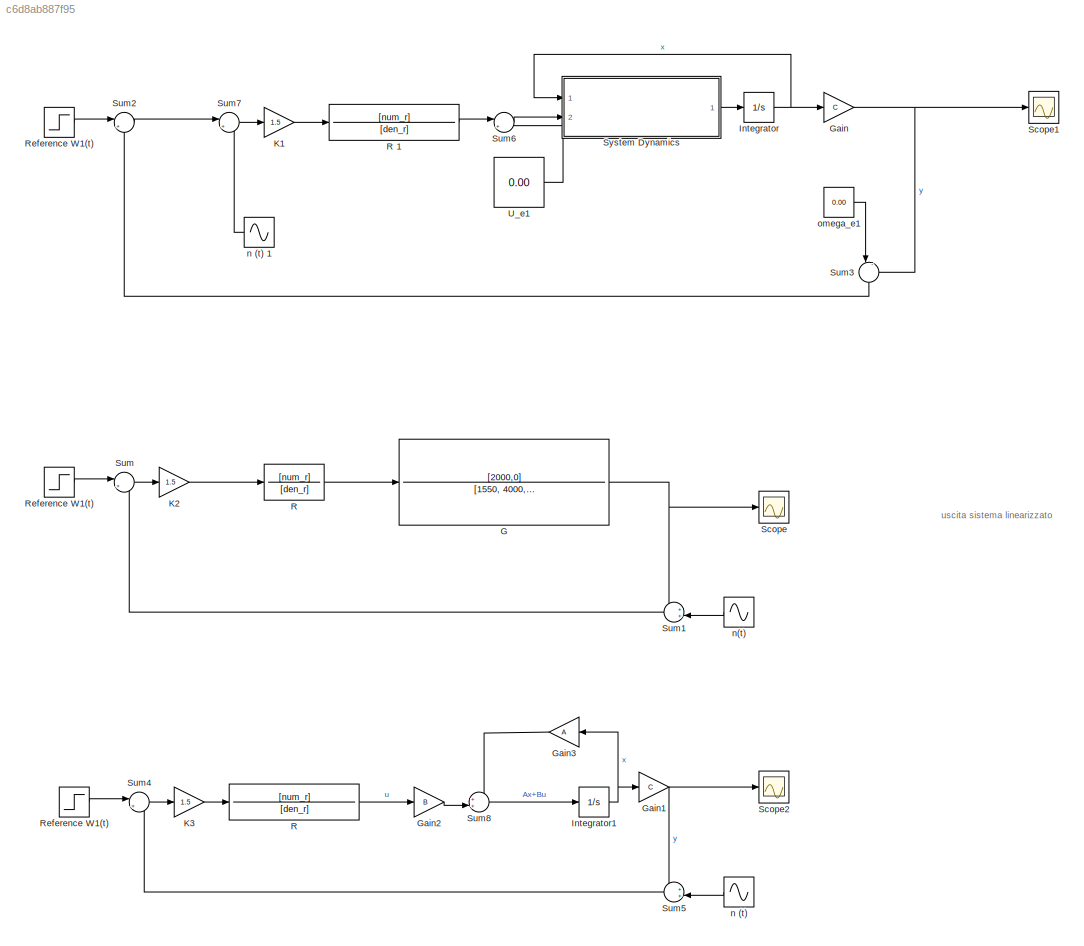
MODEL slx_c6d8ab887f95
KIND model
CONFIG AbsTol = auto
CONFIG EnableMultiTasking = off
CONFIG FixedStep = auto
CONFIG MaxStep = auto
CONFIG MinStep = auto
CONFIG RelTol = 1e-3
CONFIG SampleTimeConstraint = Unconstrained
CONFIG SolverName = VariableStepAuto
CONFIG StartTime = 0.0
CONFIG StopTime = 10.0
WORKSPACE source: mxarray member
WORKSPACE s: Simulink.Parameter (value not decoded)
BLOCK [TransferFcn] G
  Denominator = [1550,  4000, 981]
  Numerator = [2000,0]
BLOCK [Gain] Gain
  Gain = C
  Multiplication = Matrix(K*u)
BLOCK [Gain] Gain1
  Gain = C
  Multiplication = Matrix(K*u)
BLOCK [Gain] Gain2
  Gain = B
  Multiplication = Matrix(K*u)
BLOCK [Gain] Gain3
  Gain = A
  Multiplication = Matrix(K*u)
  NameLocation = top
BLOCK [Integrator] Integrator
  InitialCondition = x0
  Ports = [1, 1]
BLOCK [Integrator] Integrator1
  InitialCondition = x0
  Ports = [1, 1]
BLOCK [Gain] K1
  Gain = 1.5
BLOCK [Gain] K2
  Gain = 1.5
BLOCK [Gain] K3
  Gain = 1.5
BLOCK [TransferFcn] R
  Denominator = [den_r]
  Numerator = [num_r]
BLOCK [TransferFcn] R 
  Denominator = [den_r]
  Numerator = [num_r]
BLOCK [TransferFcn] R 1
  Denominator = [den_r]
  Numerator = [num_r]
BLOCK [Step] Reference W1(t)
  After = W
  SampleTime = 0
BLOCK [Step] Reference W1(t) 
  After = W
  SampleTime = 0
BLOCK [Scope] Scope
  Floating = off
  NumInputPorts = 1
  Ports = [1]
  ScopeSpecificationString = Simulink.scopes.TimeScopeBlockCfg('CurrentConfiguration', extmgr.ConfigurationSet(extmgr.Configuration('Core','General UI',true),extmgr.Configuration('Core','Source UI',true),extmgr.Configuration('Sources','WiredSimulink',true,'DataLoggingVariableName','ScopeData1'),extmgr.Configuration('Visuals','Time Domain',true,'SerializedDisplays',{struct('MinYLimReal','-0.00096','MaxYLimReal','6.16243','YLab...<+1444ch>
BLOCK [Scope] Scope1
  Floating = off
  NumInputPorts = 1
  Ports = [1]
  ScopeSpecificationString = Simulink.scopes.TimeScopeBlockCfg('CurrentConfiguration', extmgr.ConfigurationSet(extmgr.Configuration('Core','General UI',true),extmgr.Configuration('Core','Source UI',true),extmgr.Configuration('Sources','WiredSimulink',true,'DataLoggingVariableName','ScopeData1'),extmgr.Configuration('Visuals','Time Domain',true,'SerializedDisplays',{struct('MinYLimReal','-0.00096','MaxYLimReal','5.81666','YLab...<+1444ch>
BLOCK [Scope] Scope2
  Floating = off
  NumInputPorts = 1
  Ports = [1]
  ScopeSpecificationString = Simulink.scopes.TimeScopeBlockCfg('CurrentConfiguration', extmgr.ConfigurationSet(extmgr.Configuration('Core','General UI',true),extmgr.Configuration('Core','Source UI',true),extmgr.Configuration('Sources','WiredSimulink',true,'DataLoggingVariableName','ScopeData2'),extmgr.Configuration('Visuals','Time Domain',true,'SerializedDisplays',{struct('MinYLimReal','4.87084','MaxYLimReal','5.44084','YLabe...<+1417ch>
BLOCK [Sum] Sum
  Inputs = |+-
  Ports = [2, 1]
BLOCK [Sum] Sum1
  Inputs = ++|
  NameLocation = top
  Ports = [2, 1]
BLOCK [Sum] Sum2
  Inputs = |+-
  Ports = [2, 1]
BLOCK [Sum] Sum3
  Inputs = |-+
  NameLocation = left
  Ports = [2, 1]
BLOCK [Sum] Sum4
  Inputs = |+-
  Ports = [2, 1]
BLOCK [Sum] Sum5
  Inputs = ++|
  NameLocation = top
  Ports = [2, 1]
BLOCK [Sum] Sum6
  Inputs = |++
  Ports = [2, 1]
BLOCK [Sum] Sum7
  Inputs = |+-
  Ports = [2, 1]
BLOCK [Sum] Sum8
  Inputs = ++|
  Ports = [2, 1]
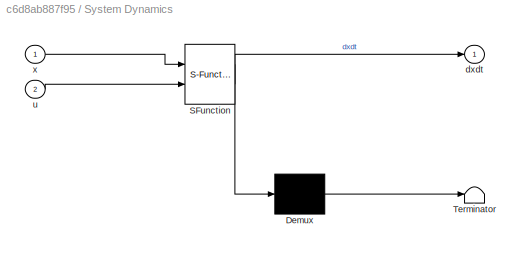
BLOCK [SubSystem] System Dynamics
  ErrorFcn = Stateflow.Translate.translate
  PermitHierarchicalResolution = ExplicitOnly
  Ports = [2, 1]
  RequestExecContextInheritance = off
  SFBlockType = MATLAB Function
  TreatAsAtomicUnit = on
BLOCK [Demux] System Dynamics/ Demux 
  Outputs = 1
  Ports = [1, 1]
BLOCK [S-Function] System Dynamics/ SFunction 
  EnableBusSupport = on
  FunctionName = sf_sfun
  PortCounts = [2 2]
  Ports = [2, 2]
  SFcnIsStateOwnerBlock = off
  SFunctionDeploymentMode = off
  Tag = Stateflow S-Function 2
BLOCK [Terminator] System Dynamics/ Terminator 
BLOCK [Outport] System Dynamics/dxdt
BLOCK [Inport] System Dynamics/u
  Port = 2
BLOCK [Inport] System Dynamics/x
BLOCK [Constant] U_e1
  Value = 0.00
BLOCK [Sin] n (t) 
  Amplitude = 0.02
  Frequency = omega_n
  NameLocation = top
  Ports = [0, 1]
  SampleTime = 0
BLOCK [Sin] n (t) 1
  Amplitude = 0.02
  Frequency = omega_n
  NameLocation = top
  Ports = [0, 1]
  SampleTime = 0
BLOCK [Sin] n(t)
  Amplitude = 0.02
  Frequency = omega_n
  NameLocation = top
  Ports = [0, 1]
  SampleTime = 0
BLOCK [Constant] omega_e1
  Value = 0.00
ANNOTATION (root): uscita sistema linearizzato
NET G:1 -> Scope:1, Sum1:1
NET Gain1:1 -> Scope2:1, Sum5:1
LINE Gain2:1 -> Sum8:2
LINE Gain3:1 -> Sum8:1
NET Gain:1 -> Scope1:1, Sum3:2
NET Integrator1:1 -> Gain1:1, Gain3:1
NET Integrator:1 -> Gain:1, System Dynamics:1
LINE K1:1 -> R 1:1
LINE K2:1 -> R:1
LINE K3:1 -> R :1
LINE R 1:1 -> Sum6:1
LINE R :1 -> Gain2:1
LINE R:1 -> G:1
NET Reference W1(t) :1 -> Sum2:1, Sum4:1
LINE Reference W1(t):1 -> Sum:1
LINE Sum1:1 -> Sum:2
LINE Sum2:1 -> Sum7:1
LINE Sum3:1 -> Sum2:2
LINE Sum4:1 -> K3:1
LINE Sum5:1 -> Sum4:2
LINE Sum6:1 -> System Dynamics:2
LINE Sum7:1 -> K1:1
LINE Sum8:1 -> Integrator1:1
LINE Sum:1 -> K2:1
LINE System Dynamics:1 -> Integrator:1
LINE U_e1:1 -> Sum6:2
LINE n (t) 1:1 -> Sum7:2
LINE n (t) :1 -> Sum5:2
LINE n(t):1 -> Sum1:2
LINE omega_e1:1 -> Sum3:1
note: NET lines group one-source signal fan-out (src -> all destinations, sorted); 1:1 wires keep LINE
CHART System
Dynamics states=1 transitions=1
  STATE_LABEL 'eML_blk_kernel()'
  STATE_LABEL 'SCRIPT:\nfunction dxdt  = systemDynamic(x,u)\nbeta = 2;\nmassa = 0.1;\ne_i = 0.5;\ninerzia = 0.75; %Ie\ngg=9.81;\n\ndx1dt=x(2);  %x1=theta\ndx2dt=(-beta*x(2)-gg*massa*e_i*sin(x(1))+u)/(massa*e_i*e_i+inerzia);  %x2=omega\n%dxdt = [dx1dt; dx2dt; dx3dt;...;dxndt];\ndxdt = [dx1dt; dx2dt;];\n\n'
CHART  states=0 transitions=0
